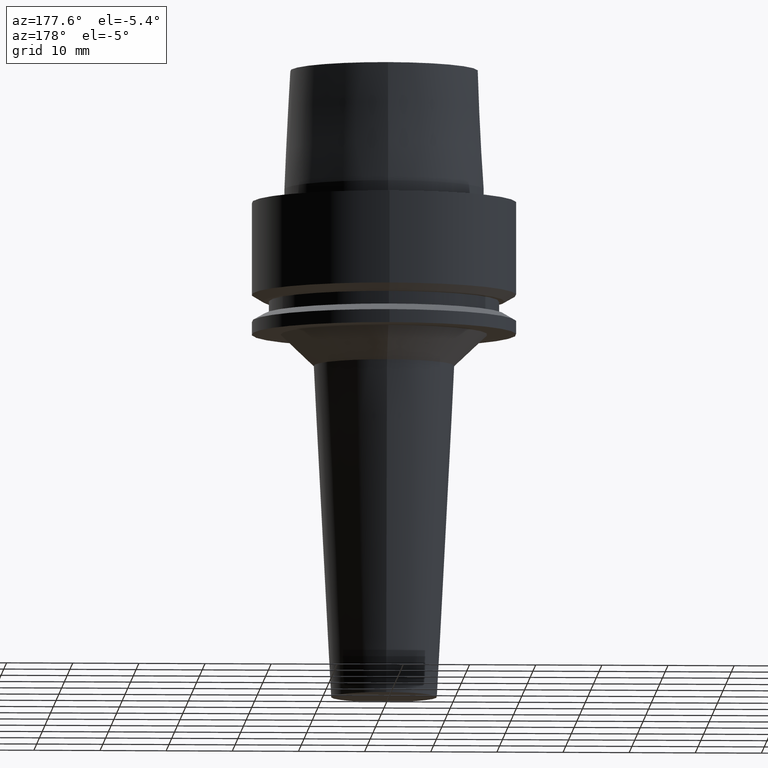
[diagram: clean part render]
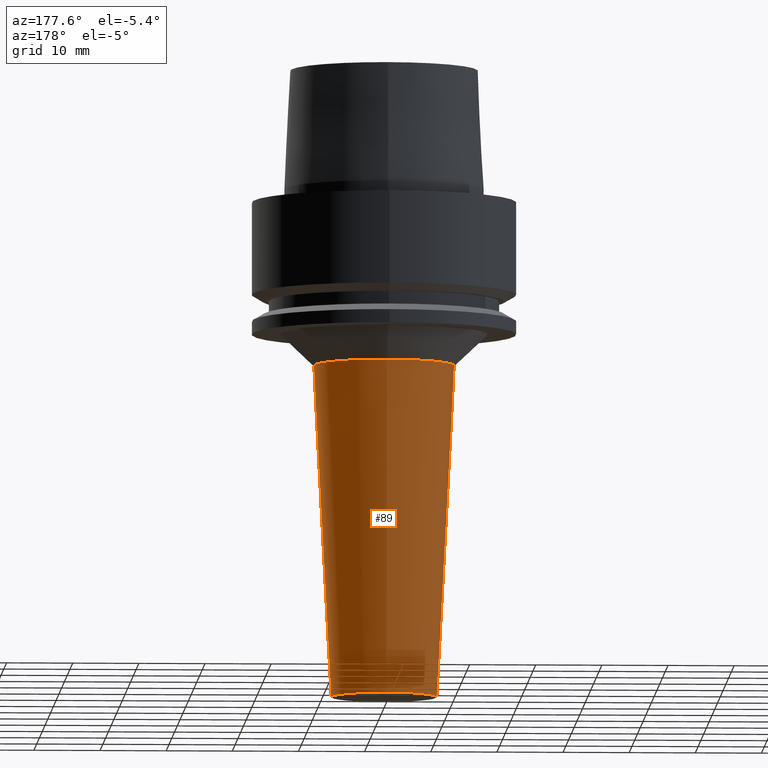
[diagram: same view with one face highlighted and labeled with its STEP entity id]
A machine part, auxiliary view. The second image highlights one B-rep face of the part: STEP entity #89.
In plain terms, the highlighted conical surface has half-angle 3 deg.
Its self-contained STEP definition (entity closure, byte-faithful):
#89=ADVANCED_FACE('',(#131,#132),#133,.T.);
#131=FACE_BOUND('',#174,.T.);
#132=FACE_BOUND('',#175,.T.);
#133=CONICAL_SURFACE('',#176,9.31705151123448,0.0523598775100344);
#174=EDGE_LOOP('',(#245));
#175=EDGE_LOOP('',(#246));
#176=AXIS2_PLACEMENT_3D('',#247,#248,#249);
#245=ORIENTED_EDGE('',*,*,#250,.F.);
#246=ORIENTED_EDGE('',*,*,#263,.T.);
#247=CARTESIAN_POINT('',(3.05360536508943E-015,6.10721073017886E-015,-49.869160107477));
#248=DIRECTION('',(-6.12323399573677E-017,-1.22464679914735E-016,1.0));
#249=DIRECTION('',(-1.23259516440783E-032,1.0,1.22464679914735E-016));
#250=EDGE_CURVE('',#264,#264,#265,.T.);
#263=EDGE_CURVE('',#290,#290,#291,.T.);
#264=VERTEX_POINT('',#292);
#265=CIRCLE('',#293,8.00000000220452);
#290=VERTEX_POINT('',#318);
#291=CIRCLE('',#319,10.6341030202644);
#292=CARTESIAN_POINT('',(4.59242549680257E-015,8.00000000220453,-75.0));
#293=AXIS2_PLACEMENT_3D('',#320,#321,#322);
#318=CARTESIAN_POINT('',(1.51478523337628E-015,10.6341030202644,-24.738320214954));
#319=AXIS2_PLACEMENT_3D('',#359,#360,#361);
#320=CARTESIAN_POINT('',(4.59242549680257E-015,9.18485099360515E-015,-75.0));
#321=DIRECTION('',(6.12323399573677E-017,1.22464679914735E-016,-1.0));
#322=DIRECTION('',(-1.23259516440783E-032,1.0,1.22464679914735E-016));
#359=CARTESIAN_POINT('',(1.51478523337628E-015,3.02957046675257E-015,-24.738320214954));
#360=DIRECTION('',(6.12323399573677E-017,1.22464679914735E-016,-1.0));
#361=DIRECTION('',(-1.23259516440783E-032,1.0,1.22464679914735E-016));